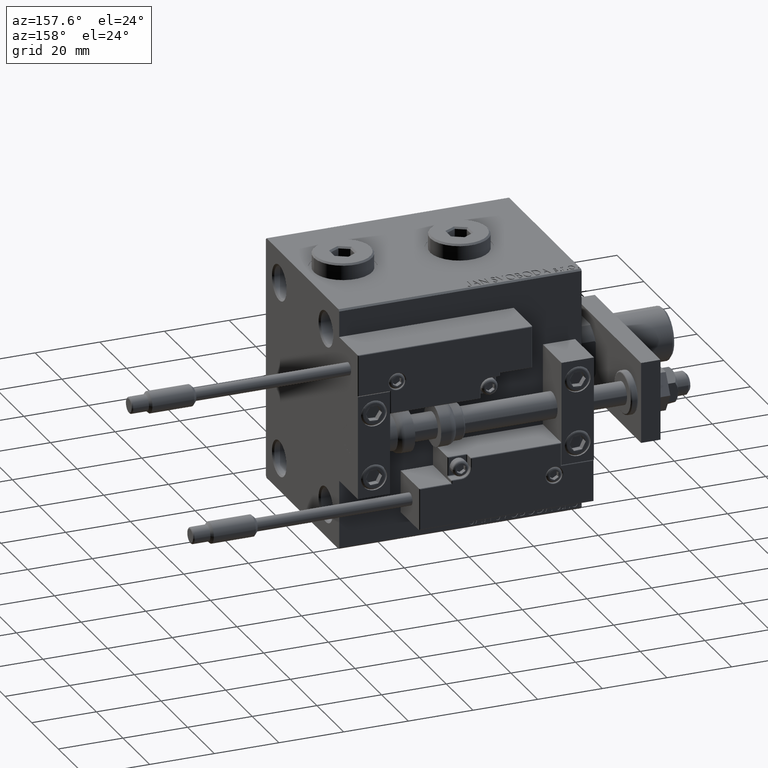
[diagram: clean part render]
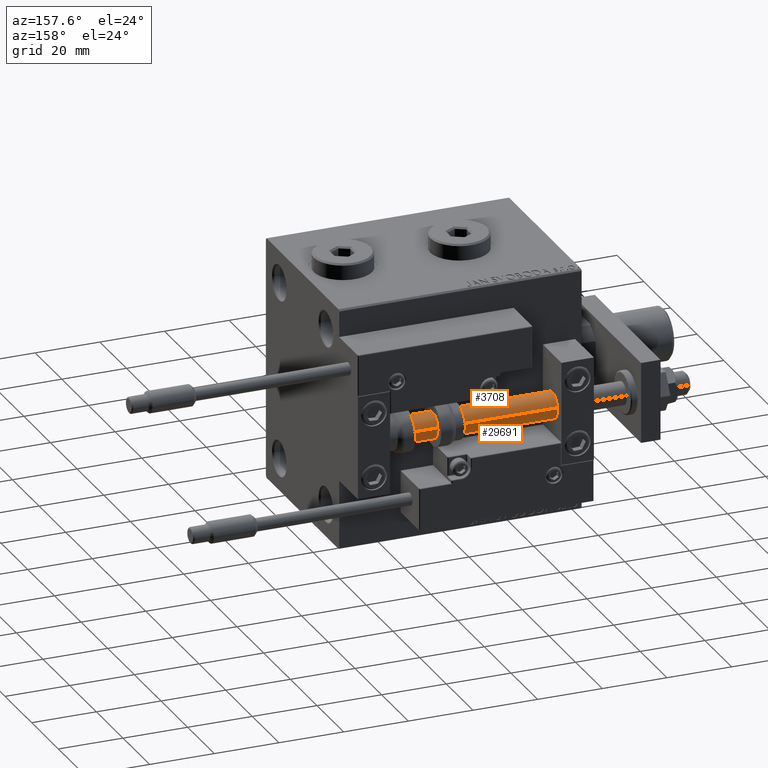
[diagram: same view with one multi-face feature highlighted, each face labeled with its STEP entity id]
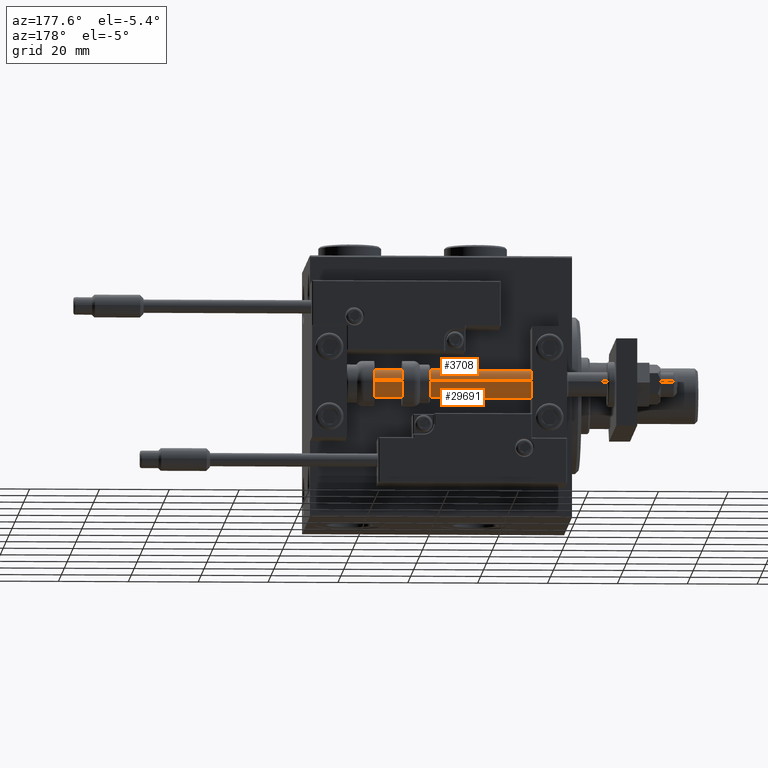
[diagram: same view with one multi-face feature highlighted, each face labeled with its STEP entity id]
A machine part, auxiliary view. The highlighted faces form ONE feature: a constant-radius fillet chain: 2 tangent blend faces with common blend radius 4 mm. The faces share edges in the B-rep.
A second angle (auxiliary view) of the same feature is appended — it is thin or edge-on in the first view.
Their STEP definitions:
[1] entity #3708 (Cylinder):
#1656 = VECTOR ( 'NONE', #42222, 1000.000000000000000 ) ;
#1920 = VERTEX_POINT ( 'NONE', #29001 ) ;
#3650 = EDGE_CURVE ( 'NONE', #26687, #1920, #8711, .T. ) ;
#3708 = ADVANCED_FACE ( 'NONE', ( #20852 ), #37303, .T. ) ;
#3837 = ORIENTED_EDGE ( 'NONE', *, *, #3650, .T. ) ;
#4683 = DIRECTION ( 'NONE',  ( -0.000000000000000000, -0.000000000000000000, 1.000000000000000000 ) ) ;
#7424 = CARTESIAN_POINT ( 'NONE',  ( 0.000000000000000000, 0.000000000000000000, 75.00000000000000000 ) ) ;
#7866 = AXIS2_PLACEMENT_3D ( 'NONE', #25179, #4683, #49412 ) ;
#8121 = CARTESIAN_POINT ( 'NONE',  ( 4.000000000000000000, 4.898587196589412829E-16, 2.000000000000029310 ) ) ;
#8711 = CIRCLE ( 'NONE', #7866, 4.000000000000000000 ) ;
#10014 = EDGE_LOOP ( 'NONE', ( #21460, #13852, #3837, #48647 ) ) ;
#10329 = CARTESIAN_POINT ( 'NONE',  ( 0.000000000000000000, 0.000000000000000000, 75.00000000000000000 ) ) ;
#13145 = LINE ( 'NONE', #49514, #1656 ) ;
#13852 = ORIENTED_EDGE ( 'NONE', *, *, #43365, .T. ) ;
#15246 = DIRECTION ( 'NONE',  ( 0.000000000000000000, 0.000000000000000000, 1.000000000000000000 ) ) ;
#17351 = DIRECTION ( 'NONE',  ( -0.000000000000000000, -0.000000000000000000, -1.000000000000000000 ) ) ;
#19069 = AXIS2_PLACEMENT_3D ( 'NONE', #10329, #17351, #25976 ) ;
#19988 = AXIS2_PLACEMENT_3D ( 'NONE', #7424, #15246, #44594 ) ;
#20852 = FACE_OUTER_BOUND ( 'NONE', #10014, .T. ) ;
#21386 = VECTOR ( 'NONE', #30203, 1000.000000000000000 ) ;
#21460 = ORIENTED_EDGE ( 'NONE', *, *, #37398, .F. ) ;
#23169 = LINE ( 'NONE', #34517, #21386 ) ;
#25179 = CARTESIAN_POINT ( 'NONE',  ( 0.000000000000000000, 0.000000000000000000, 2.000000000000029310 ) ) ;
#25976 = DIRECTION ( 'NONE',  ( -1.000000000000000000, 0.000000000000000000, 0.000000000000000000 ) ) ;
#26687 = VERTEX_POINT ( 'NONE', #8121 ) ;
#29001 = CARTESIAN_POINT ( 'NONE',  ( -4.000000000000000000, 0.000000000000000000, 2.000000000000029310 ) ) ;
#30203 = DIRECTION ( 'NONE',  ( -0.000000000000000000, -0.000000000000000000, -1.000000000000000000 ) ) ;
#34517 = CARTESIAN_POINT ( 'NONE',  ( 4.000000000000000000, 4.898587196589412829E-16, 75.00000000000000000 ) ) ;
#35995 = VERTEX_POINT ( 'NONE', #38580 ) ;
#37303 = CYLINDRICAL_SURFACE ( 'NONE', #19069, 4.000000000000000000 ) ;
#37398 = EDGE_CURVE ( 'NONE', #38056, #35995, #43216, .T. ) ;
#38056 = VERTEX_POINT ( 'NONE', #51908 ) ;
#38580 = CARTESIAN_POINT ( 'NONE',  ( -4.000000000000000000, 0.000000000000000000, 75.00000000000000000 ) ) ;
#41408 = EDGE_CURVE ( 'NONE', #35995, #1920, #13145, .T. ) ;
#42222 = DIRECTION ( 'NONE',  ( -0.000000000000000000, -0.000000000000000000, -1.000000000000000000 ) ) ;
#43216 = CIRCLE ( 'NONE', #19988, 4.000000000000000000 ) ;
#43365 = EDGE_CURVE ( 'NONE', #38056, #26687, #23169, .T. ) ;
#44594 = DIRECTION ( 'NONE',  ( 1.000000000000000000, 0.000000000000000000, 0.000000000000000000 ) ) ;
#48647 = ORIENTED_EDGE ( 'NONE', *, *, #41408, .F. ) ;
#49412 = DIRECTION ( 'NONE',  ( 1.000000000000000000, 0.000000000000000000, 0.000000000000000000 ) ) ;
#49514 = CARTESIAN_POINT ( 'NONE',  ( -4.000000000000000000, 0.000000000000000000, 75.00000000000000000 ) ) ;
#51908 = CARTESIAN_POINT ( 'NONE',  ( 4.000000000000000000, 4.898587196589412829E-16, 75.00000000000000000 ) ) ;
[2] entity #29691 (Cylinder):
#999 = ORIENTED_EDGE ( 'NONE', *, *, #41408, .T. ) ;
#1656 = VECTOR ( 'NONE', #42222, 1000.000000000000000 ) ;
#1745 = DIRECTION ( 'NONE',  ( -1.000000000000000000, 0.000000000000000000, 0.000000000000000000 ) ) ;
#1920 = VERTEX_POINT ( 'NONE', #29001 ) ;
#3440 = AXIS2_PLACEMENT_3D ( 'NONE', #13872, #42698, #1745 ) ;
#3739 = DIRECTION ( 'NONE',  ( 1.000000000000000000, 0.000000000000000000, 0.000000000000000000 ) ) ;
#4068 = CIRCLE ( 'NONE', #10117, 4.000000000000000000 ) ;
#4211 = AXIS2_PLACEMENT_3D ( 'NONE', #22603, #6676, #7216 ) ;
#5541 = ORIENTED_EDGE ( 'NONE', *, *, #20416, .F. ) ;
#6676 = DIRECTION ( 'NONE',  ( -0.000000000000000000, -0.000000000000000000, 1.000000000000000000 ) ) ;
#7216 = DIRECTION ( 'NONE',  ( 1.000000000000000000, 0.000000000000000000, 0.000000000000000000 ) ) ;
#8121 = CARTESIAN_POINT ( 'NONE',  ( 4.000000000000000000, 4.898587196589412829E-16, 2.000000000000029310 ) ) ;
#10117 = AXIS2_PLACEMENT_3D ( 'NONE', #16130, #52784, #3739 ) ;
#12571 = ORIENTED_EDGE ( 'NONE', *, *, #23995, .T. ) ;
#13145 = LINE ( 'NONE', #49514, #1656 ) ;
#13872 = CARTESIAN_POINT ( 'NONE',  ( 0.000000000000000000, 0.000000000000000000, 75.00000000000000000 ) ) ;
#16130 = CARTESIAN_POINT ( 'NONE',  ( 0.000000000000000000, 0.000000000000000000, 75.00000000000000000 ) ) ;
#20416 = EDGE_CURVE ( 'NONE', #35995, #38056, #4068, .T. ) ;
#21386 = VECTOR ( 'NONE', #30203, 1000.000000000000000 ) ;
#22603 = CARTESIAN_POINT ( 'NONE',  ( 0.000000000000000000, 0.000000000000000000, 2.000000000000029310 ) ) ;
#23169 = LINE ( 'NONE', #34517, #21386 ) ;
#23995 = EDGE_CURVE ( 'NONE', #1920, #26687, #30042, .T. ) ;
#26687 = VERTEX_POINT ( 'NONE', #8121 ) ;
#28921 = ORIENTED_EDGE ( 'NONE', *, *, #43365, .F. ) ;
#29001 = CARTESIAN_POINT ( 'NONE',  ( -4.000000000000000000, 0.000000000000000000, 2.000000000000029310 ) ) ;
#29691 = ADVANCED_FACE ( 'NONE', ( #47545 ), #38129, .T. ) ;
#30042 = CIRCLE ( 'NONE', #4211, 4.000000000000000000 ) ;
#30203 = DIRECTION ( 'NONE',  ( -0.000000000000000000, -0.000000000000000000, -1.000000000000000000 ) ) ;
#34517 = CARTESIAN_POINT ( 'NONE',  ( 4.000000000000000000, 4.898587196589412829E-16, 75.00000000000000000 ) ) ;
#35995 = VERTEX_POINT ( 'NONE', #38580 ) ;
#38056 = VERTEX_POINT ( 'NONE', #51908 ) ;
#38129 = CYLINDRICAL_SURFACE ( 'NONE', #3440, 4.000000000000000000 ) ;
#38580 = CARTESIAN_POINT ( 'NONE',  ( -4.000000000000000000, 0.000000000000000000, 75.00000000000000000 ) ) ;
#40761 = EDGE_LOOP ( 'NONE', ( #28921, #5541, #999, #12571 ) ) ;
#41408 = EDGE_CURVE ( 'NONE', #35995, #1920, #13145, .T. ) ;
#42222 = DIRECTION ( 'NONE',  ( -0.000000000000000000, -0.000000000000000000, -1.000000000000000000 ) ) ;
#42698 = DIRECTION ( 'NONE',  ( -0.000000000000000000, -0.000000000000000000, -1.000000000000000000 ) ) ;
#43365 = EDGE_CURVE ( 'NONE', #38056, #26687, #23169, .T. ) ;
#47545 = FACE_OUTER_BOUND ( 'NONE', #40761, .T. ) ;
#49514 = CARTESIAN_POINT ( 'NONE',  ( -4.000000000000000000, 0.000000000000000000, 75.00000000000000000 ) ) ;
#51908 = CARTESIAN_POINT ( 'NONE',  ( 4.000000000000000000, 4.898587196589412829E-16, 75.00000000000000000 ) ) ;
#52784 = DIRECTION ( 'NONE',  ( 0.000000000000000000, 0.000000000000000000, 1.000000000000000000 ) ) ;